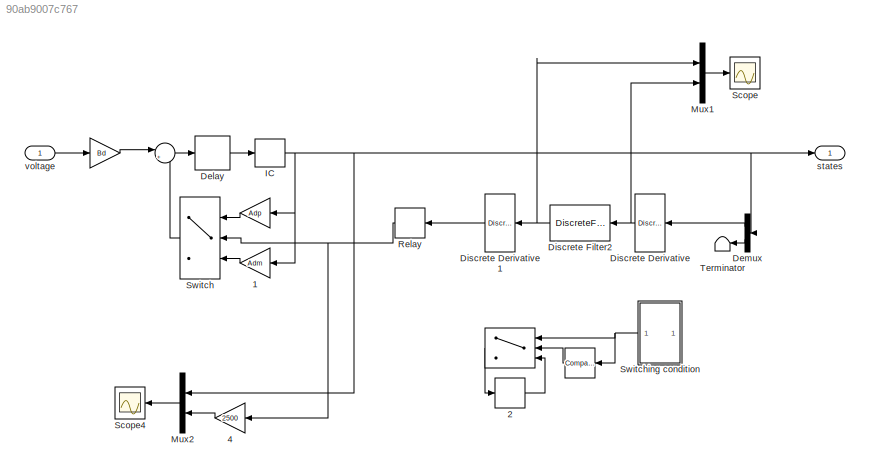
MODEL slx_90ab9007c767
KIND model
CONFIG AbsTol = auto
CONFIG FixedStep = auto
CONFIG MaxStep = auto
CONFIG MinStep = auto
CONFIG RelTol = 1e-3
CONFIG SampleTimeConstraint = Unconstrained
CONFIG Solver = VariableStepAuto
CONFIG SolverMode = Auto
CONFIG SolverName = VariableStepAuto
CONFIG StartTime = 0.0
CONFIG StopTime = 10.0
BLOCK [Sum]  
  IconShape = round
  InputSameDT = off
  Inputs = |++
  OutDataTypeStr = Inherit: Inherit via internal rule
  Ports = [2, 1]
  SaturateOnIntegerOverflow = off
BLOCK [Gain]   
  Gain = Bd
  Multiplication = Matrix(K*u)
  OutDataTypeStr = Inherit: Inherit via internal rule
  ParamDataTypeStr = Inherit: Inherit via internal rule
  SaturateOnIntegerOverflow = off
BLOCK [Gain]     
  Gain = Adp
  Multiplication = Matrix(K*u)
  OutDataTypeStr = Inherit: Inherit via internal rule
  ParamDataTypeStr = Inherit: Inherit via internal rule
  SaturateOnIntegerOverflow = off
BLOCK [Switch]      
  Commented = on
  Criteria = u2 > Threshold
  InputSameDT = off
  SaturateOnIntegerOverflow = off
BLOCK [Reference]             REF=simulink/Logic and Bit
Operations/Compare
To Zero
  Commented = on
  Ports = [1, 1]
  SourceBlock = simulink/Logic and Bit\nOperations/Compare\nTo Zero
  SourceType = Compare To Zero
BLOCK [Gain]     1
  Gain = Adm
  Multiplication = Matrix(K*u)
  OutDataTypeStr = Inherit: Inherit via internal rule
  ParamDataTypeStr = Inherit: Inherit via internal rule
  SaturateOnIntegerOverflow = off
BLOCK [Memory]     2
  Commented = on
BLOCK [Gain]     4
  Gain = 2500
  Multiplication = Matrix(K*u)
  OutDataTypeStr = Inherit: Inherit via internal rule
  ParamDataTypeStr = Inherit: Inherit via internal rule
  SaturateOnIntegerOverflow = off
BLOCK [Delay] Delay
  DelayLength = 1
  InputPortMap = u0
  Ports = [1, 1]
  SampleTime = timestep
BLOCK [Demux] Demux
  DisplayOption = bar
  Outputs = 2
  Ports = [1, 2]
BLOCK [Reference] Discrete Derivative  REF=simulink/Discrete/Discrete Derivative
  Ports = [1, 1]
  SourceBlock = simulink/Discrete/Discrete Derivative
  SourceType = Discrete Derivative
BLOCK [Reference] Discrete Derivative1  REF=simulink/Discrete/Discrete Derivative
  Ports = [1, 1]
  SourceBlock = simulink/Discrete/Discrete Derivative
  SourceType = Discrete Derivative
BLOCK [DiscreteFilter] Discrete Filter2
  Denominator = [1 -0.99]
  InputPortMap = u0
  Numerator = [0.01]
  Ports = [1, 1]
BLOCK [InitialCondition] IC
  Value = x0
BLOCK [Mux] Mux1
  DisplayOption = bar
  Inputs = 2
  Ports = [2, 1]
BLOCK [Mux] Mux2
  DisplayOption = bar
  Inputs = 2
  Ports = [2, 1]
BLOCK [Relay] Relay
  InputProcessing = Elements as channels (sample based)
  OffOutputValue = 1
  OffSwitchValue = -relay_lim
  OnOutputValue = 0
  OnSwitchValue = relay_lim
BLOCK [Scope] Scope
  Ports = [1]
  ScopeSpecificationString = Simulink.scopes.TimeScopeBlockCfg('CurrentConfiguration', extmgr.ConfigurationSet(extmgr.Configuration('Core','General UI',true),extmgr.Configuration('Core','Source UI',true),extmgr.Configuration('Sources','WiredSimulink',true),extmgr.Configuration('Visuals','Time Domain',true,'SerializedDisplays',{struct('MinYLimReal','-20210.70138','MaxYLimReal','32011.84519','YLabelReal','','MinYLimMag','   0.0...<+1434ch>
BLOCK [Scope] Scope4
  Ports = [1]
  ScopeSpecificationString = Simulink.scopes.TimeScopeBlockCfg('CurrentConfiguration', extmgr.ConfigurationSet(extmgr.Configuration('Core','General UI',true),extmgr.Configuration('Core','Source UI',true),extmgr.Configuration('Sources','WiredSimulink',true,'DataLoggingVariableName','ScopeData4'),extmgr.Configuration('Visuals','Time Domain',true,'SerializedDisplays',{struct('MinYLimReal','-3140.45596','MaxYLimReal','3140.10891'...<+1429ch>
BLOCK [Switch] Switch
  Criteria = u2 ~= 0
  InputSameDT = off
  SaturateOnIntegerOverflow = off
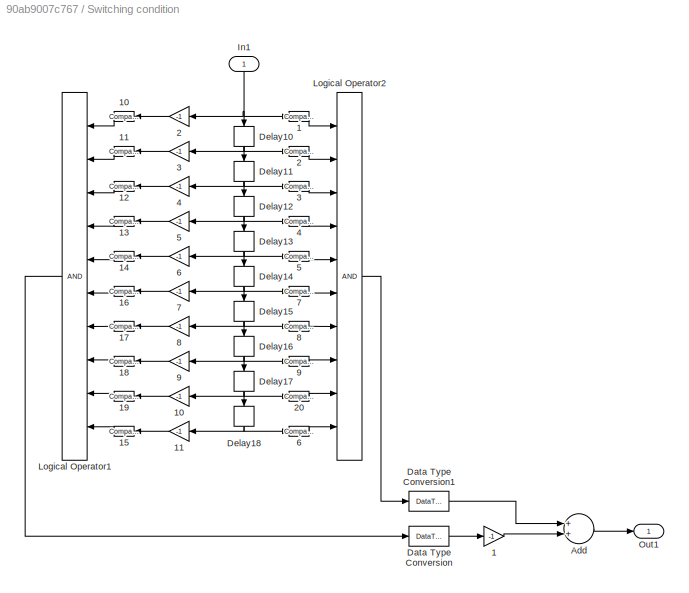
BLOCK [SubSystem] Switching condition
  Commented = on
  Ports = [1, 1]
  RequestExecContextInheritance = off
  Variant = off
BLOCK [Gain] Switching condition/    1
  Gain = -1
  Multiplication = Matrix(K*u)
  OutDataTypeStr = Inherit: Inherit via internal rule
  ParamDataTypeStr = Inherit: Inherit via internal rule
  SaturateOnIntegerOverflow = off
BLOCK [Gain] Switching condition/    10
  Gain = -1
  Multiplication = Matrix(K*u)
  OutDataTypeStr = Inherit: Inherit via internal rule
  ParamDataTypeStr = Inherit: Inherit via internal rule
  SaturateOnIntegerOverflow = off
BLOCK [Gain] Switching condition/    11
  Gain = -1
  Multiplication = Matrix(K*u)
  OutDataTypeStr = Inherit: Inherit via internal rule
  ParamDataTypeStr = Inherit: Inherit via internal rule
  SaturateOnIntegerOverflow = off
BLOCK [Gain] Switching condition/    2
  Gain = -1
  Multiplication = Matrix(K*u)
  OutDataTypeStr = Inherit: Inherit via internal rule
  ParamDataTypeStr = Inherit: Inherit via internal rule
  SaturateOnIntegerOverflow = off
BLOCK [Gain] Switching condition/    3
  Gain = -1
  Multiplication = Matrix(K*u)
  OutDataTypeStr = Inherit: Inherit via internal rule
  ParamDataTypeStr = Inherit: Inherit via internal rule
  SaturateOnIntegerOverflow = off
BLOCK [Gain] Switching condition/    4
  Gain = -1
  Multiplication = Matrix(K*u)
  OutDataTypeStr = Inherit: Inherit via internal rule
  ParamDataTypeStr = Inherit: Inherit via internal rule
  SaturateOnIntegerOverflow = off
BLOCK [Gain] Switching condition/    5
  Gain = -1
  Multiplication = Matrix(K*u)
  OutDataTypeStr = Inherit: Inherit via internal rule
  ParamDataTypeStr = Inherit: Inherit via internal rule
  SaturateOnIntegerOverflow = off
BLOCK [Gain] Switching condition/    6
  Gain = -1
  Multiplication = Matrix(K*u)
  OutDataTypeStr = Inherit: Inherit via internal rule
  ParamDataTypeStr = Inherit: Inherit via internal rule
  SaturateOnIntegerOverflow = off
BLOCK [Gain] Switching condition/    7
  Gain = -1
  Multiplication = Matrix(K*u)
  OutDataTypeStr = Inherit: Inherit via internal rule
  ParamDataTypeStr = Inherit: Inherit via internal rule
  SaturateOnIntegerOverflow = off
BLOCK [Gain] Switching condition/    8
  Gain = -1
  Multiplication = Matrix(K*u)
  OutDataTypeStr = Inherit: Inherit via internal rule
  ParamDataTypeStr = Inherit: Inherit via internal rule
  SaturateOnIntegerOverflow = off
BLOCK [Gain] Switching condition/    9
  Gain = -1
  Multiplication = Matrix(K*u)
  OutDataTypeStr = Inherit: Inherit via internal rule
  ParamDataTypeStr = Inherit: Inherit via internal rule
  SaturateOnIntegerOverflow = off
BLOCK [Reference] Switching condition/   1  REF=simulink/Logic and Bit
Operations/Compare
To Zero
  Ports = [1, 1]
  SourceBlock = simulink/Logic and Bit\nOperations/Compare\nTo Zero
  SourceType = Compare To Zero
BLOCK [Reference] Switching condition/   10  REF=simulink/Logic and Bit
Operations/Compare
To Zero
  Ports = [1, 1]
  SourceBlock = simulink/Logic and Bit\nOperations/Compare\nTo Zero
  SourceType = Compare To Zero
BLOCK [Reference] Switching condition/   11  REF=simulink/Logic and Bit
Operations/Compare
To Zero
  Ports = [1, 1]
  SourceBlock = simulink/Logic and Bit\nOperations/Compare\nTo Zero
  SourceType = Compare To Zero
BLOCK [Reference] Switching condition/   12  REF=simulink/Logic and Bit
Operations/Compare
To Zero
  Ports = [1, 1]
  SourceBlock = simulink/Logic and Bit\nOperations/Compare\nTo Zero
  SourceType = Compare To Zero
BLOCK [Reference] Switching condition/   13  REF=simulink/Logic and Bit
Operations/Compare
To Zero
  Ports = [1, 1]
  SourceBlock = simulink/Logic and Bit\nOperations/Compare\nTo Zero
  SourceType = Compare To Zero
BLOCK [Reference] Switching condition/   14  REF=simulink/Logic and Bit
Operations/Compare
To Zero
  Ports = [1, 1]
  SourceBlock = simulink/Logic and Bit\nOperations/Compare\nTo Zero
  SourceType = Compare To Zero
BLOCK [Reference] Switching condition/   15  REF=simulink/Logic and Bit
Operations/Compare
To Zero
  Ports = [1, 1]
  SourceBlock = simulink/Logic and Bit\nOperations/Compare\nTo Zero
  SourceType = Compare To Zero
BLOCK [Reference] Switching condition/   16  REF=simulink/Logic and Bit
Operations/Compare
To Zero
  Ports = [1, 1]
  SourceBlock = simulink/Logic and Bit\nOperations/Compare\nTo Zero
  SourceType = Compare To Zero
BLOCK [Reference] Switching condition/   17  REF=simulink/Logic and Bit
Operations/Compare
To Zero
  Ports = [1, 1]
  SourceBlock = simulink/Logic and Bit\nOperations/Compare\nTo Zero
  SourceType = Compare To Zero
BLOCK [Reference] Switching condition/   18  REF=simulink/Logic and Bit
Operations/Compare
To Zero
  Ports = [1, 1]
  SourceBlock = simulink/Logic and Bit\nOperations/Compare\nTo Zero
  SourceType = Compare To Zero
BLOCK [Reference] Switching condition/   19  REF=simulink/Logic and Bit
Operations/Compare
To Zero
  Ports = [1, 1]
  SourceBlock = simulink/Logic and Bit\nOperations/Compare\nTo Zero
  SourceType = Compare To Zero
BLOCK [Reference] Switching condition/   2  REF=simulink/Logic and Bit
Operations/Compare
To Zero
  Ports = [1, 1]
  SourceBlock = simulink/Logic and Bit\nOperations/Compare\nTo Zero
  SourceType = Compare To Zero
BLOCK [Reference] Switching condition/   20  REF=simulink/Logic and Bit
Operations/Compare
To Zero
  Ports = [1, 1]
  SourceBlock = simulink/Logic and Bit\nOperations/Compare\nTo Zero
  SourceType = Compare To Zero
BLOCK [Reference] Switching condition/   3  REF=simulink/Logic and Bit
Operations/Compare
To Zero
  Ports = [1, 1]
  SourceBlock = simulink/Logic and Bit\nOperations/Compare\nTo Zero
  SourceType = Compare To Zero
BLOCK [Reference] Switching condition/   4  REF=simulink/Logic and Bit
Operations/Compare
To Zero
  Ports = [1, 1]
  SourceBlock = simulink/Logic and Bit\nOperations/Compare\nTo Zero
  SourceType = Compare To Zero
BLOCK [Reference] Switching condition/   5  REF=simulink/Logic and Bit
Operations/Compare
To Zero
  Ports = [1, 1]
  SourceBlock = simulink/Logic and Bit\nOperations/Compare\nTo Zero
  SourceType = Compare To Zero
BLOCK [Reference] Switching condition/   6  REF=simulink/Logic and Bit
Operations/Compare
To Zero
  Ports = [1, 1]
  SourceBlock = simulink/Logic and Bit\nOperations/Compare\nTo Zero
  SourceType = Compare To Zero
BLOCK [Reference] Switching condition/   7  REF=simulink/Logic and Bit
Operations/Compare
To Zero
  Ports = [1, 1]
  SourceBlock = simulink/Logic and Bit\nOperations/Compare\nTo Zero
  SourceType = Compare To Zero
BLOCK [Reference] Switching condition/   8  REF=simulink/Logic and Bit
Operations/Compare
To Zero
  Ports = [1, 1]
  SourceBlock = simulink/Logic and Bit\nOperations/Compare\nTo Zero
  SourceType = Compare To Zero
BLOCK [Reference] Switching condition/   9  REF=simulink/Logic and Bit
Operations/Compare
To Zero
  Ports = [1, 1]
  SourceBlock = simulink/Logic and Bit\nOperations/Compare\nTo Zero
  SourceType = Compare To Zero
BLOCK [Sum] Switching condition/Add
  InputSameDT = off
  OutDataTypeStr = Inherit: Inherit via internal rule
  Ports = [2, 1]
  SaturateOnIntegerOverflow = off
BLOCK [DataTypeConversion] Switching condition/Data Type Conversion
  RndMeth = Floor
  SaturateOnIntegerOverflow = off
BLOCK [DataTypeConversion] Switching condition/Data Type Conversion1
  RndMeth = Floor
  SaturateOnIntegerOverflow = off
BLOCK [Delay] Switching condition/Delay10
  DelayLength = 1
  InitialCondition = 0
  InputPortMap = u0
  Ports = [1, 1]
  SampleTime = 0.002
BLOCK [Delay] Switching condition/Delay11
  DelayLength = 1
  InitialCondition = 0
  InputPortMap = u0
  Ports = [1, 1]
  SampleTime = 0.002
BLOCK [Delay] Switching condition/Delay12
  DelayLength = 1
  InitialCondition = 0
  InputPortMap = u0
  Ports = [1, 1]
  SampleTime = 0.002
BLOCK [Delay] Switching condition/Delay13
  DelayLength = 1
  InitialCondition = 0
  InputPortMap = u0
  Ports = [1, 1]
  SampleTime = 0.002
BLOCK [Delay] Switching condition/Delay14
  DelayLength = 1
  InitialCondition = 0
  InputPortMap = u0
  Ports = [1, 1]
  SampleTime = 0.002
BLOCK [Delay] Switching condition/Delay15
  DelayLength = 1
  InitialCondition = 0
  InputPortMap = u0
  Ports = [1, 1]
  SampleTime = 0.002
BLOCK [Delay] Switching condition/Delay16
  DelayLength = 1
  InitialCondition = 0
  InputPortMap = u0
  Ports = [1, 1]
  SampleTime = 0.002
BLOCK [Delay] Switching condition/Delay17
  DelayLength = 1
  InitialCondition = 0
  InputPortMap = u0
  Ports = [1, 1]
  SampleTime = 0.002
BLOCK [Delay] Switching condition/Delay18
  DelayLength = 1
  InitialCondition = 0
  InputPortMap = u0
  Ports = [1, 1]
  SampleTime = 0.002
BLOCK [Inport] Switching condition/In1
  IconDisplay = Port number
BLOCK [Logic] Switching condition/Logical Operator1
  AllPortsSameDT = off
  IconShape = distinctive
  Inputs = 10
  OutDataTypeStr = boolean
  Ports = [10, 1]
BLOCK [Logic] Switching condition/Logical Operator2
  AllPortsSameDT = off
  IconShape = distinctive
  Inputs = 10
  OutDataTypeStr = boolean
  Ports = [10, 1]
BLOCK [Outport] Switching condition/Out1
  IconDisplay = Port number
BLOCK [Terminator] Terminator
BLOCK [Outport] states
  IconDisplay = Port number
BLOCK [Inport] voltage
  IconDisplay = Port number
  PortDimensions = 1
LINE           :1 ->      :2
LINE      :1 ->     2:1
LINE     1:1 -> Switch:3
LINE     2:1 ->      :3
LINE     4:1 -> Mux2:2
LINE     :1 -> Switch:1
LINE   :1 ->  :1
LINE  :1 -> Delay:1
LINE Delay:1 -> IC:1
LINE Demux:1 -> Discrete Derivative:1
LINE Demux:2 -> Terminator:1
LINE Discrete Derivative1:1 -> Relay:1
NET Discrete Derivative:1 -> Discrete Filter2:1, Mux1:2
NET Discrete Filter2:1 -> Discrete Derivative1:1, Mux1:1
NET IC:1 ->     1:1,     :1, Demux:1, Mux2:1, states:1
LINE Mux1:1 -> Scope:1
LINE Mux2:1 -> Scope4:1
NET Relay:1 ->     4:1, Switch:2
LINE Switch:1 ->  :2
LINE Switching condition/    10:1 -> Switching condition/   19:1
LINE Switching condition/    11:1 -> Switching condition/   15:1
LINE Switching condition/    1:1 -> Switching condition/Add:2
LINE Switching condition/    2:1 -> Switching condition/   10:1
LINE Switching condition/    3:1 -> Switching condition/   11:1
LINE Switching condition/    4:1 -> Switching condition/   12:1
LINE Switching condition/    5:1 -> Switching condition/   13:1
LINE Switching condition/    6:1 -> Switching condition/   14:1
LINE Switching condition/    7:1 -> Switching condition/   16:1
LINE Switching condition/    8:1 -> Switching condition/   17:1
LINE Switching condition/    9:1 -> Switching condition/   18:1
LINE Switching condition/   10:1 -> Switching condition/Logical Operator1:1
LINE Switching condition/   11:1 -> Switching condition/Logical Operator1:2
LINE Switching condition/   12:1 -> Switching condition/Logical Operator1:3
LINE Switching condition/   13:1 -> Switching condition/Logical Operator1:4
LINE Switching condition/   14:1 -> Switching condition/Logical Operator1:5
LINE Switching condition/   15:1 -> Switching condition/Logical Operator1:10
LINE Switching condition/   16:1 -> Switching condition/Logical Operator1:6
LINE Switching condition/   17:1 -> Switching condition/Logical Operator1:7
LINE Switching condition/   18:1 -> Switching condition/Logical Operator1:8
LINE Switching condition/   19:1 -> Switching condition/Logical Operator1:9
LINE Switching condition/   1:1 -> Switching condition/Logical Operator2:1
LINE Switching condition/   20:1 -> Switching condition/Logical Operator2:9
LINE Switching condition/   2:1 -> Switching condition/Logical Operator2:2
LINE Switching condition/   3:1 -> Switching condition/Logical Operator2:3
LINE Switching condition/   4:1 -> Switching condition/Logical Operator2:4
LINE Switching condition/   5:1 -> Switching condition/Logical Operator2:5
LINE Switching condition/   6:1 -> Switching condition/Logical Operator2:10
LINE Switching condition/   7:1 -> Switching condition/Logical Operator2:6
LINE Switching condition/   8:1 -> Switching condition/Logical Operator2:7
LINE Switching condition/   9:1 -> Switching condition/Logical Operator2:8
LINE Switching condition/Add:1 -> Switching condition/Out1:1
LINE Switching condition/Data Type Conversion1:1 -> Switching condition/Add:1
LINE Switching condition/Data Type Conversion:1 -> Switching condition/    1:1
NET Switching condition/Delay10:1 -> Switching condition/    3:1, Switching condition/   2:1, Switching condition/Delay11:1
NET Switching condition/Delay11:1 -> Switching condition/    4:1, Switching condition/   3:1, Switching condition/Delay12:1
NET Switching condition/Delay12:1 -> Switching condition/    5:1, Switching condition/   4:1, Switching condition/Delay13:1
NET Switching condition/Delay13:1 -> Switching condition/    6:1, Switching condition/   5:1, Switching condition/Delay14:1
NET Switching condition/Delay14:1 -> Switching condition/    7:1, Switching condition/   7:1, Switching condition/Delay15:1
NET Switching condition/Delay15:1 -> Switching condition/    8:1, Switching condition/   8:1, Switching condition/Delay16:1
NET Switching condition/Delay16:1 -> Switching condition/    9:1, Switching condition/   9:1, Switching condition/Delay17:1
NET Switching condition/Delay17:1 -> Switching condition/    10:1, Switching condition/   20:1, Switching condition/Delay18:1
NET Switching condition/Delay18:1 -> Switching condition/    11:1, Switching condition/   6:1
NET Switching condition/In1:1 -> Switching condition/    2:1, Switching condition/   1:1, Switching condition/Delay10:1
LINE Switching condition/Logical Operator1:1 -> Switching condition/Data Type Conversion:1
LINE Switching condition/Logical Operator2:1 -> Switching condition/Data Type Conversion1:1
NET Switching condition:1 ->           :1,      :1
LINE voltage:1 ->   :1
note: NET lines group one-source signal fan-out (src -> all destinations, sorted); 1:1 wires keep LINE
